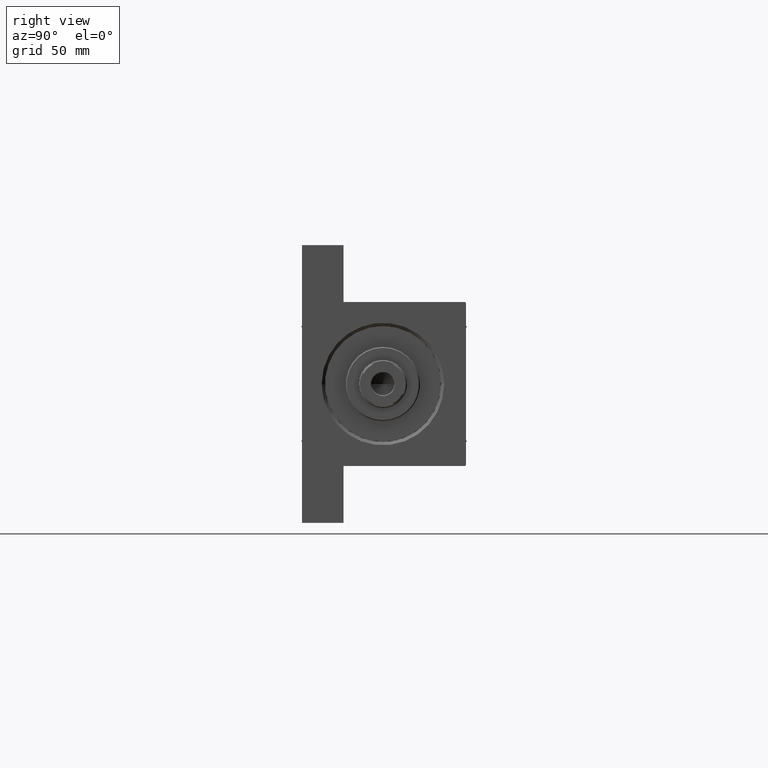
[diagram: clean part render]
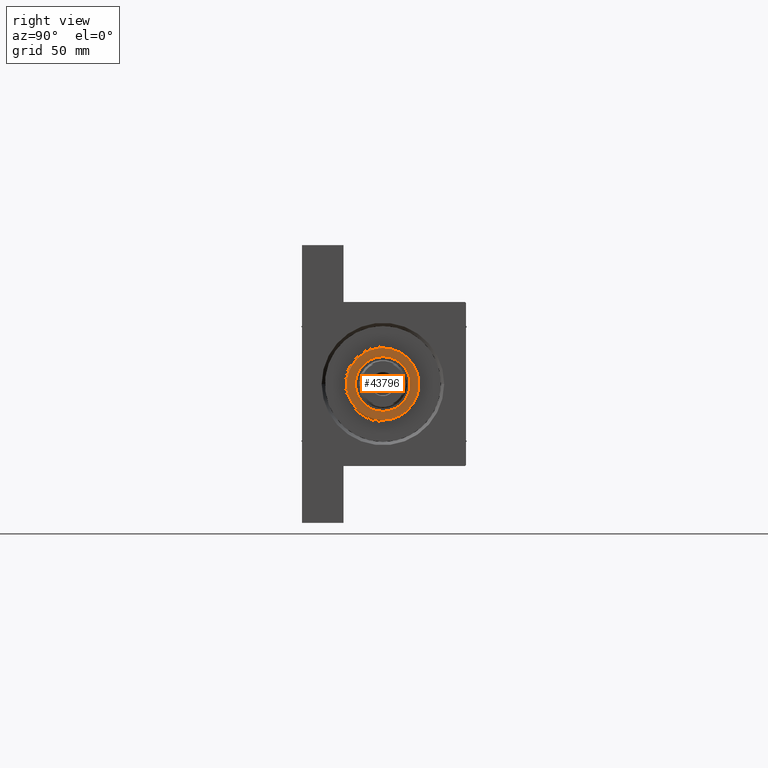
[diagram: same view with one face highlighted and labeled with its STEP entity id]
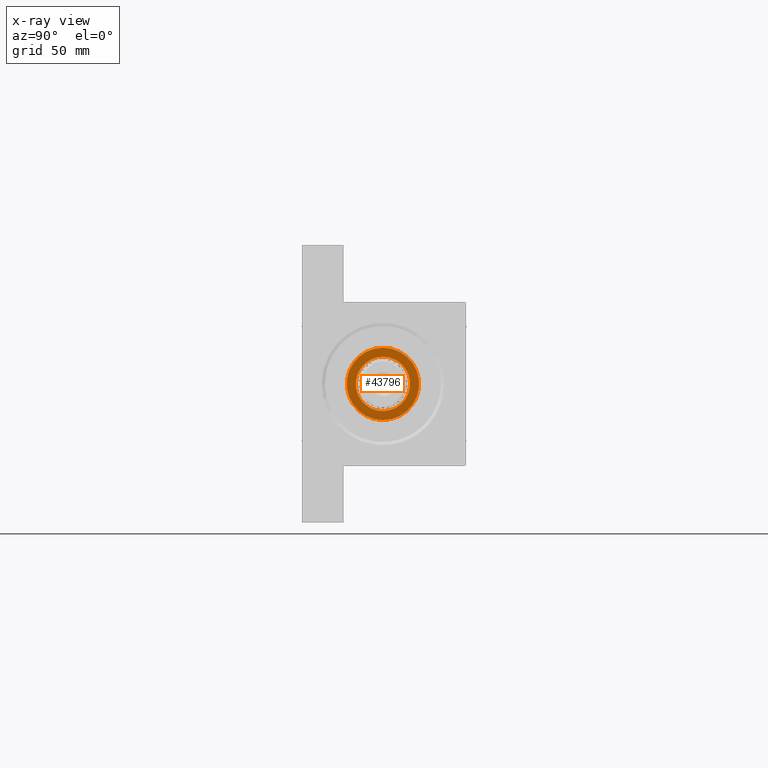
[diagram: x-ray of the same camera — body ghosted, the highlighted face saturated]
A machine part, right view. The second image highlights one B-rep face of the part: STEP entity #43796.
The next image is the same camera in x-ray: the body ghosted, the highlighted face saturated — about 0% of this face is hidden behind the body in this view.
In plain terms, the highlighted planar face has unit normal (1, 0, 0).
Its self-contained STEP definition (entity closure, byte-faithful):
#3003 = CARTESIAN_POINT ( 'NONE',  ( 0.000000000000000000, 0.000000000000000000, 37.69999999999999574 ) ) ;
#3740 = AXIS2_PLACEMENT_3D ( 'NONE', #27627, #9099, #42746 ) ;
#3876 = CARTESIAN_POINT ( 'NONE',  ( 12.50000000000000000, 0.000000000000000000, 37.69999999999999574 ) ) ;
#4095 = VERTEX_POINT ( 'NONE', #42443 ) ;
#5315 = ORIENTED_EDGE ( 'NONE', *, *, #27669, .T. ) ;
#5560 = DIRECTION ( 'NONE',  ( 1.000000000000000000, 0.000000000000000000, 0.000000000000000000 ) ) ;
#5929 = DIRECTION ( 'NONE',  ( 1.000000000000000000, 0.000000000000000000, 0.000000000000000000 ) ) ;
#6044 = CARTESIAN_POINT ( 'NONE',  ( 0.000000000000000000, 0.000000000000000000, 37.69999999999999574 ) ) ;
#6208 = FACE_BOUND ( 'NONE', #15864, .T. ) ;
#7925 = EDGE_LOOP ( 'NONE', ( #27993, #5315 ) ) ;
#9099 = DIRECTION ( 'NONE',  ( 0.000000000000000000, 0.000000000000000000, 1.000000000000000000 ) ) ;
#10069 = AXIS2_PLACEMENT_3D ( 'NONE', #6044, #27929, #5560 ) ;
#11340 = AXIS2_PLACEMENT_3D ( 'NONE', #34492, #18864, #22966 ) ;
#12527 = ORIENTED_EDGE ( 'NONE', *, *, #22071, .F. ) ;
#13788 = CARTESIAN_POINT ( 'NONE',  ( -16.50000000000000000, 0.000000000000000000, 37.69999999999999574 ) ) ;
#14689 = CIRCLE ( 'NONE', #10069, 12.50000000000000000 ) ;
#15864 = EDGE_LOOP ( 'NONE', ( #12527, #19239 ) ) ;
#17389 = EDGE_CURVE ( 'NONE', #41063, #39125, #14689, .T. ) ;
#18864 = DIRECTION ( 'NONE',  ( 0.000000000000000000, 0.000000000000000000, 1.000000000000000000 ) ) ;
#19239 = ORIENTED_EDGE ( 'NONE', *, *, #17389, .F. ) ;
#21522 = DIRECTION ( 'NONE',  ( 0.000000000000000000, 0.000000000000000000, 1.000000000000000000 ) ) ;
#22071 = EDGE_CURVE ( 'NONE', #39125, #41063, #33285, .T. ) ;
#22966 = DIRECTION ( 'NONE',  ( 1.000000000000000000, 0.000000000000000000, 0.000000000000000000 ) ) ;
#24882 = CIRCLE ( 'NONE', #25666, 16.50000000000000000 ) ;
#25666 = AXIS2_PLACEMENT_3D ( 'NONE', #43193, #39128, #5929 ) ;
#27627 = CARTESIAN_POINT ( 'NONE',  ( 0.000000000000000000, 0.000000000000000000, 37.69999999999999574 ) ) ;
#27669 = EDGE_CURVE ( 'NONE', #4095, #43430, #24882, .T. ) ;
#27929 = DIRECTION ( 'NONE',  ( 0.000000000000000000, 0.000000000000000000, 1.000000000000000000 ) ) ;
#27993 = ORIENTED_EDGE ( 'NONE', *, *, #36797, .T. ) ;
#31464 = FACE_OUTER_BOUND ( 'NONE', #7925, .T. ) ;
#33285 = CIRCLE ( 'NONE', #34789, 12.50000000000000000 ) ;
#33611 = CIRCLE ( 'NONE', #11340, 16.50000000000000000 ) ;
#34492 = CARTESIAN_POINT ( 'NONE',  ( 0.000000000000000000, 0.000000000000000000, 37.69999999999999574 ) ) ;
#34789 = AXIS2_PLACEMENT_3D ( 'NONE', #3003, #21522, #36193 ) ;
#36062 = CARTESIAN_POINT ( 'NONE',  ( -12.50000000000000000, 1.530808498934191521E-15, 37.69999999999999574 ) ) ;
#36193 = DIRECTION ( 'NONE',  ( 1.000000000000000000, 0.000000000000000000, 0.000000000000000000 ) ) ;
#36797 = EDGE_CURVE ( 'NONE', #43430, #4095, #33611, .T. ) ;
#39125 = VERTEX_POINT ( 'NONE', #3876 ) ;
#39128 = DIRECTION ( 'NONE',  ( 0.000000000000000000, 0.000000000000000000, 1.000000000000000000 ) ) ;
#39397 = PLANE ( 'NONE',  #3740 ) ;
#41063 = VERTEX_POINT ( 'NONE', #36062 ) ;
#42443 = CARTESIAN_POINT ( 'NONE',  ( 16.50000000000000000, 2.051283388571816887E-15, 37.69999999999999574 ) ) ;
#42746 = DIRECTION ( 'NONE',  ( 1.000000000000000000, 0.000000000000000000, -0.000000000000000000 ) ) ;
#43193 = CARTESIAN_POINT ( 'NONE',  ( 0.000000000000000000, 0.000000000000000000, 37.69999999999999574 ) ) ;
#43430 = VERTEX_POINT ( 'NONE', #13788 ) ;
#43796 = ADVANCED_FACE ( 'NONE', ( #6208, #31464 ), #39397, .T. ) ;